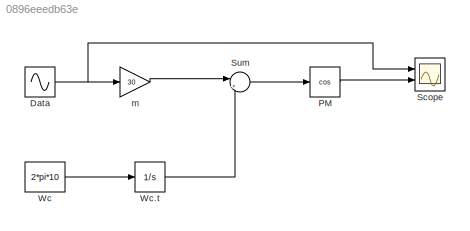
MODEL slx_0896eeedb63e
KIND model
CONFIG AbsTol = auto
CONFIG EnableMultiTasking = off
CONFIG FixedStep = auto
CONFIG MaxStep = auto
CONFIG MinStep = auto
CONFIG RelTol = 1e-3
CONFIG SampleTimeConstraint = Unconstrained
CONFIG SolverName = VariableStepAuto
CONFIG StartTime = 0.0
CONFIG StopTime = 10.0
BLOCK [Sin] Data
  Frequency = 2*pi
  Ports = [0, 1]
  SampleTime = 1/5000
BLOCK [Trigonometry] PM
  Operator = cos
  Ports = [1, 1]
BLOCK [Scope] Scope
  Floating = off
  NumInputPorts = 2
  Ports = [2]
  ScopeSpecificationString = Simulink.scopes.TimeScopeBlockCfg('CurrentConfiguration', extmgr.ConfigurationSet(extmgr.Configuration('Core','General UI',true),extmgr.Configuration('Core','Source UI',true),extmgr.Configuration('Sources','WiredSimulink',true),extmgr.Configuration('Visuals','Time Domain',true,'SerializedDisplays',{struct('MinYLimReal','-1.25','MaxYLimReal','1.25','YLabelReal','','MinYLimMag','0.00000','MaxYLimMag...<+1965ch>
BLOCK [Sum] Sum
  Inputs = |++
  Ports = [2, 1]
BLOCK [Constant] Wc
  Value = 2*pi*10
BLOCK [Integrator] Wc.t
  Ports = [1, 1]
BLOCK [Gain] m
  Gain = 30
NET Data:1 -> Scope:1, m:1
LINE PM:1 -> Scope:2
LINE Sum:1 -> PM:1
LINE Wc.t:1 -> Sum:2
LINE Wc:1 -> Wc.t:1
LINE m:1 -> Sum:1
note: NET lines group one-source signal fan-out (src -> all destinations, sorted); 1:1 wires keep LINE
